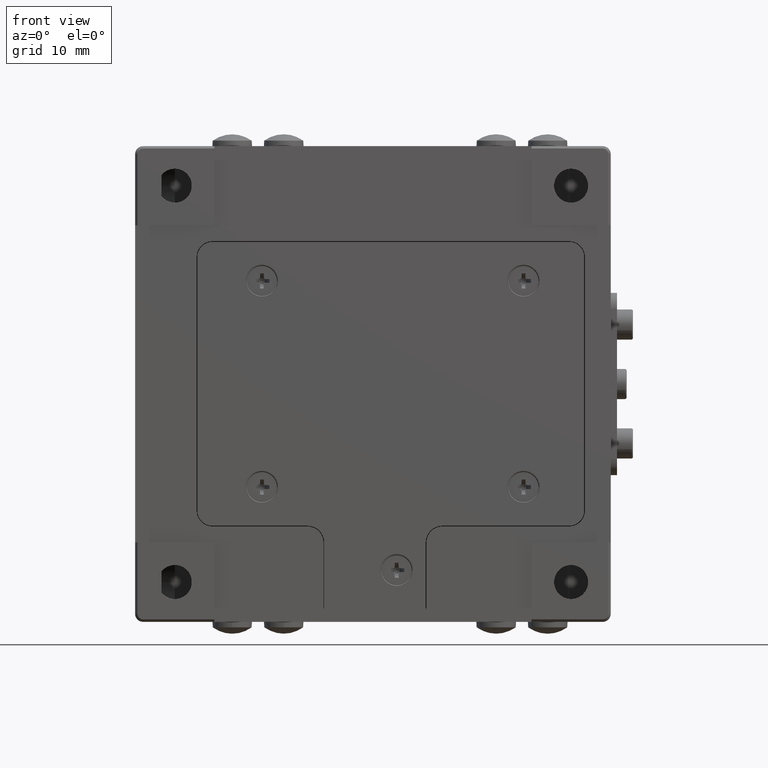
[diagram: clean part render]
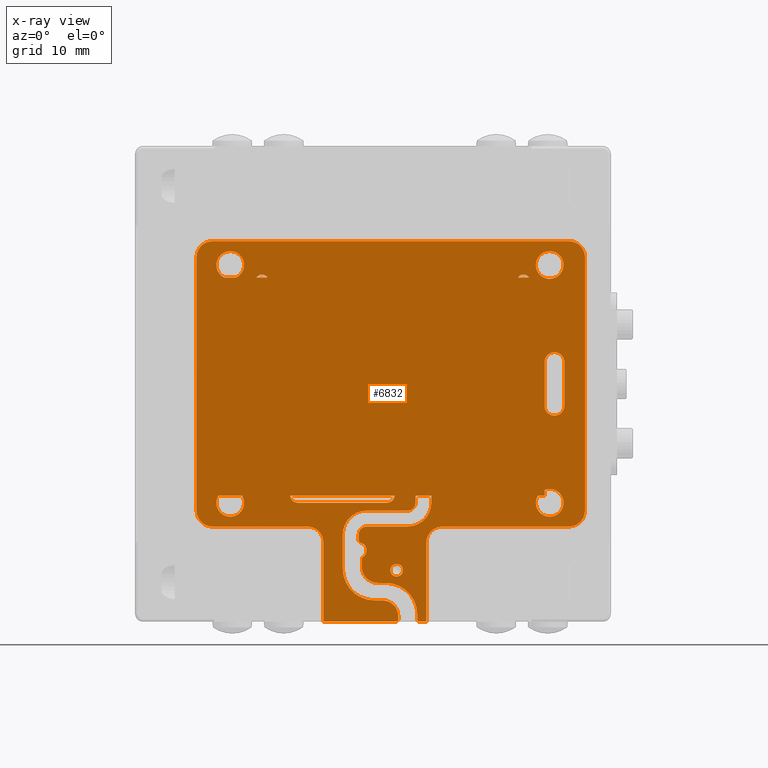
[diagram: x-ray — body ghosted, one internal face saturated and labeled with its STEP entity id]
A machine part, front view, then the same camera in x-ray: the body is ghosted and one INTERNAL B-rep face — a face not visible from any outside direction — is saturated and labeled: STEP entity #6832.
In plain terms, the highlighted planar face has unit normal (0, -1, 0).
Its self-contained STEP definition (entity closure, byte-faithful):
#32 = DIRECTION ( 'NONE',  ( -1.000000000000000000, 0.000000000000000000, 0.000000000000000000 ) ) ;
#57 = DIRECTION ( 'NONE',  ( 0.000000000000000000, -1.000000000000000000, 0.000000000000000000 ) ) ;
#196 = CARTESIAN_POINT ( 'NONE',  ( 28.19999999999999929, 3.250000000000000000, -48.98835187819890535 ) ) ;
#213 = EDGE_CURVE ( 'NONE', #8039, #18792, #24429, .T. ) ;
#263 = VERTEX_POINT ( 'NONE', #16413 ) ;
#288 = DIRECTION ( 'NONE',  ( 0.000000000000000000, 0.000000000000000000, 1.000000000000000000 ) ) ;
#299 = ORIENTED_EDGE ( 'NONE', *, *, #4678, .T. ) ;
#313 = EDGE_CURVE ( 'NONE', #5571, #22231, #4271, .T. ) ;
#344 = CARTESIAN_POINT ( 'NONE',  ( 52.29999999999999716, 3.250000000000000000, -45.00000000000000000 ) ) ;
#575 = VERTEX_POINT ( 'NONE', #12708 ) ;
#654 = CARTESIAN_POINT ( 'NONE',  ( 21.75000000000000000, 3.250000000000000000, -50.00000000000000000 ) ) ;
#659 = EDGE_CURVE ( 'NONE', #19241, #15022, #15011, .T. ) ;
#755 = VECTOR ( 'NONE', #19352, 1000.000000000000000 ) ;
#841 = VERTEX_POINT ( 'NONE', #19636 ) ;
#868 = PLANE ( 'NONE',  #14380 ) ;
#964 = EDGE_CURVE ( 'NONE', #15891, #14194, #2465, .T. ) ;
#1018 = VECTOR ( 'NONE', #18005, 1000.000000000000000 ) ;
#1056 = EDGE_LOOP ( 'NONE', ( #24201, #19419, #24862, #19119, #9525 ) ) ;
#1067 = EDGE_LOOP ( 'NONE', ( #24447, #1145, #4248, #10429 ) ) ;
#1114 = CARTESIAN_POINT ( 'NONE',  ( 34.37202194154569668, 3.250000000000000000, -44.98835187819889825 ) ) ;
#1145 = ORIENTED_EDGE ( 'NONE', *, *, #659, .F. ) ;
#1149 = CIRCLE ( 'NONE', #5989, 2.000000000000001776 ) ;
#1203 = DIRECTION ( 'NONE',  ( 0.000000000000000000, 1.000000000000000000, 0.000000000000000000 ) ) ;
#1223 = DIRECTION ( 'NONE',  ( 0.000000000000000000, -1.000000000000000000, 0.000000000000000000 ) ) ;
#1306 = ORIENTED_EDGE ( 'NONE', *, *, #24296, .T. ) ;
#1334 = ORIENTED_EDGE ( 'NONE', *, *, #4312, .F. ) ;
#1357 = FACE_BOUND ( 'NONE', #1056, .T. ) ;
#1389 = DIRECTION ( 'NONE',  ( 1.204669080539449837E-16, 0.000000000000000000, -1.000000000000000000 ) ) ;
#1391 = VECTOR ( 'NONE', #1389, 1000.000000000000000 ) ;
#1392 = EDGE_CURVE ( 'NONE', #11268, #21050, #2305, .T. ) ;
#1403 = AXIS2_PLACEMENT_3D ( 'NONE', #22371, #13276, #6966 ) ;
#1408 = ORIENTED_EDGE ( 'NONE', *, *, #16699, .T. ) ;
#1422 = DIRECTION ( 'NONE',  ( -1.000000000000000000, 0.000000000000000000, 0.000000000000000000 ) ) ;
#1426 = CARTESIAN_POINT ( 'NONE',  ( 20.54999999999999716, 3.250000000000000000, -45.00000000000000000 ) ) ;
#1432 = EDGE_CURVE ( 'NONE', #13664, #12090, #17343, .T. ) ;
#1444 = CARTESIAN_POINT ( 'NONE',  ( 28.60000000000000142, 3.250000000000000000, -51.00000000000000000 ) ) ;
#1449 = DIRECTION ( 'NONE',  ( 0.000000000000000000, 0.000000000000000000, -1.000000000000000000 ) ) ;
#1548 = AXIS2_PLACEMENT_3D ( 'NONE', #10483, #6567, #20055 ) ;
#1550 = VECTOR ( 'NONE', #12549, 1000.000000000000000 ) ;
#1643 = VERTEX_POINT ( 'NONE', #19065 ) ;
#1656 = DIRECTION ( 'NONE',  ( 0.000000000000000000, 0.000000000000000000, -1.000000000000000000 ) ) ;
#1686 = EDGE_CURVE ( 'NONE', #8893, #5756, #9088, .T. ) ;
#1694 = CARTESIAN_POINT ( 'NONE',  ( 37.37202194154570378, 3.250000000000000000, -44.98835187819889825 ) ) ;
#1753 = DIRECTION ( 'NONE',  ( 0.000000000000000000, -1.000000000000000000, 0.000000000000000000 ) ) ;
#1776 = DIRECTION ( 'NONE',  ( 0.000000000000000000, 0.000000000000000000, -1.000000000000000000 ) ) ;
#1781 = VECTOR ( 'NONE', #3694, 1000.000000000000000 ) ;
#1902 = CARTESIAN_POINT ( 'NONE',  ( 33.00000000000000000, 3.250000000000000000, -53.50000000000000000 ) ) ;
#1947 = DIRECTION ( 'NONE',  ( 0.000000000000000000, -1.000000000000000000, 0.000000000000000000 ) ) ;
#2074 = DIRECTION ( 'NONE',  ( 0.000000000000000000, 0.000000000000000000, -1.000000000000000000 ) ) ;
#2085 = EDGE_LOOP ( 'NONE', ( #17627, #7606, #20039 ) ) ;
#2193 = CARTESIAN_POINT ( 'NONE',  ( 51.68112963079270372, 3.250000000000000000, -33.02722738447675255 ) ) ;
#2233 = CARTESIAN_POINT ( 'NONE',  ( 51.68112963079270372, 3.250000000000000000, -26.97277261420695282 ) ) ;
#2275 = ORIENTED_EDGE ( 'NONE', *, *, #10838, .T. ) ;
#2300 = DIRECTION ( 'NONE',  ( 0.000000000000000000, 0.000000000000000000, -1.000000000000000000 ) ) ;
#2305 = LINE ( 'NONE', #13910, #2324 ) ;
#2312 = CARTESIAN_POINT ( 'NONE',  ( 12.00000000000000000, 3.250000000000000000, -45.00000000000000000 ) ) ;
#2324 = VECTOR ( 'NONE', #288, 1000.000000000000000 ) ;
#2332 = CARTESIAN_POINT ( 'NONE',  ( 23.75000000000000000, 3.250000000000000000, -60.00000000000000000 ) ) ;
#2349 = DIRECTION ( 'NONE',  ( 0.000000000000000000, -1.000000000000000000, 0.000000000000000000 ) ) ;
#2418 = CARTESIAN_POINT ( 'NONE',  ( 33.00000000000000000, 3.250000000000000000, -52.69999999999999574 ) ) ;
#2465 = LINE ( 'NONE', #8149, #19125 ) ;
#2514 = EDGE_CURVE ( 'NONE', #575, #6120, #22661, .T. ) ;
#2521 = LINE ( 'NONE', #19942, #5820 ) ;
#2563 = CIRCLE ( 'NONE', #5410, 1.750000000000001554 ) ;
#2573 = AXIS2_PLACEMENT_3D ( 'NONE', #13273, #9500, #13015 ) ;
#2625 = VERTEX_POINT ( 'NONE', #1694 ) ;
#2680 = AXIS2_PLACEMENT_3D ( 'NONE', #13427, #21135, #11536 ) ;
#2781 = ORIENTED_EDGE ( 'NONE', *, *, #313, .T. ) ;
#2882 = VERTEX_POINT ( 'NONE', #10928 ) ;
#2923 = VECTOR ( 'NONE', #22362, 1000.000000000000000 ) ;
#2993 = ORIENTED_EDGE ( 'NONE', *, *, #18402, .F. ) ;
#2996 = FACE_BOUND ( 'NONE', #1067, .T. ) ;
#3003 = CIRCLE ( 'NONE', #16316, 2.000000000000001776 ) ;
#3046 = DIRECTION ( 'NONE',  ( 0.000000000000000000, -1.000000000000000000, 0.000000000000000000 ) ) ;
#3061 = VERTEX_POINT ( 'NONE', #11299 ) ;
#3120 = FACE_BOUND ( 'NONE', #7747, .T. ) ;
#3123 = LINE ( 'NONE', #23637, #18818 ) ;
#3128 = CIRCLE ( 'NONE', #19670, 3.000000000000002665 ) ;
#3145 = ORIENTED_EDGE ( 'NONE', *, *, #8631, .F. ) ;
#3213 = EDGE_CURVE ( 'NONE', #8301, #9185, #19686, .T. ) ;
#3247 = DIRECTION ( 'NONE',  ( 0.000000000000000000, -1.000000000000000000, 0.000000000000000000 ) ) ;
#3262 = LINE ( 'NONE', #24362, #23590 ) ;
#3265 = VERTEX_POINT ( 'NONE', #22226 ) ;
#3350 = CARTESIAN_POINT ( 'NONE',  ( 30.20000000000000284, 3.250000000000000000, -57.30586225072890016 ) ) ;
#3352 = AXIS2_PLACEMENT_3D ( 'NONE', #21909, #12440, #20137 ) ;
#3387 = DIRECTION ( 'NONE',  ( 0.000000000000000000, 0.000000000000000000, -1.000000000000000000 ) ) ;
#3388 = DIRECTION ( 'NONE',  ( 0.000000000000000000, 0.000000000000000000, -1.000000000000000000 ) ) ;
#3537 = ORIENTED_EDGE ( 'NONE', *, *, #17689, .F. ) ;
#3572 = DIRECTION ( 'NONE',  ( 0.000000000000000000, -1.000000000000000000, 0.000000000000000000 ) ) ;
#3589 = VERTEX_POINT ( 'NONE', #23597 ) ;
#3612 = ORIENTED_EDGE ( 'NONE', *, *, #19430, .T. ) ;
#3616 = AXIS2_PLACEMENT_3D ( 'NONE', #21264, #19368, #2074 ) ;
#3664 = DIRECTION ( 'NONE',  ( 0.000000000000000000, -1.000000000000000000, 0.000000000000000000 ) ) ;
#3694 = DIRECTION ( 'NONE',  ( 0.000000000000000000, 0.000000000000000000, -1.000000000000000000 ) ) ;
#3744 = CARTESIAN_POINT ( 'NONE',  ( 7.228523424522479424, 3.250000000000000000, -44.09063743896764720 ) ) ;
#3748 = CARTESIAN_POINT ( 'NONE',  ( 32.89999999999999858, 3.250000000000000000, -60.00000000000000000 ) ) ;
#3790 = VERTEX_POINT ( 'NONE', #18523 ) ;
#3814 = VECTOR ( 'NONE', #7871, 1000.000000000000000 ) ;
#3835 = EDGE_CURVE ( 'NONE', #2882, #24162, #22724, .T. ) ;
#3842 = VERTEX_POINT ( 'NONE', #14594 ) ;
#3903 = EDGE_CURVE ( 'NONE', #263, #17045, #23931, .T. ) ;
#3924 = LINE ( 'NONE', #9638, #21229 ) ;
#3952 = ORIENTED_EDGE ( 'NONE', *, *, #13135, .T. ) ;
#4138 = EDGE_CURVE ( 'NONE', #19599, #16895, #13055, .T. ) ;
#4216 = CIRCLE ( 'NONE', #7037, 2.000000000000000000 ) ;
#4248 = ORIENTED_EDGE ( 'NONE', *, *, #22667, .F. ) ;
#4271 = CIRCLE ( 'NONE', #18782, 2.000000000000000000 ) ;
#4274 = CARTESIAN_POINT ( 'NONE',  ( 9.750000000000000000, 3.250000000000000000, -12.00000000000000000 ) ) ;
#4288 = VECTOR ( 'NONE', #17670, 1000.000000000000000 ) ;
#4309 = DIRECTION ( 'NONE',  ( 0.000000000000000000, 0.000000000000000000, -1.000000000000000000 ) ) ;
#4312 = EDGE_CURVE ( 'NONE', #24608, #3842, #11271, .T. ) ;
#4390 = AXIS2_PLACEMENT_3D ( 'NONE', #11287, #3572, #21004 ) ;
#4439 = DIRECTION ( 'NONE',  ( 7.763230419829150531E-15, 0.000000000000000000, 1.000000000000000000 ) ) ;
#4548 = ORIENTED_EDGE ( 'NONE', *, *, #6932, .F. ) ;
#4609 = ORIENTED_EDGE ( 'NONE', *, *, #6723, .T. ) ;
#4616 = ORIENTED_EDGE ( 'NONE', *, *, #964, .T. ) ;
#4659 = CARTESIAN_POINT ( 'NONE',  ( 23.75000000000000000, 3.250000000000000000, -60.00000000000000000 ) ) ;
#4661 = DIRECTION ( 'NONE',  ( 1.000000000000000000, 0.000000000000000000, 0.000000000000000000 ) ) ;
#4678 = EDGE_CURVE ( 'NONE', #13933, #9383, #7260, .T. ) ;
#4760 = CIRCLE ( 'NONE', #1548, 2.000000000000001776 ) ;
#4843 = VERTEX_POINT ( 'NONE', #5705 ) ;
#4975 = DIRECTION ( 'NONE',  ( 0.000000000000000000, -1.000000000000000000, 0.000000000000000000 ) ) ;
#5039 = VERTEX_POINT ( 'NONE', #2418 ) ;
#5144 = DIRECTION ( 'NONE',  ( 0.000000000000000000, 1.000000000000000000, 0.000000000000000000 ) ) ;
#5224 = LINE ( 'NONE', #12928, #1781 ) ;
#5235 = CARTESIAN_POINT ( 'NONE',  ( 29.19999999999999929, 3.250000000000000000, -48.98835187819890535 ) ) ;
#5306 = CARTESIAN_POINT ( 'NONE',  ( 11.24832936420389906, 3.250000000000000000, -16.58034529621910025 ) ) ;
#5358 = DIRECTION ( 'NONE',  ( 0.000000000000000000, 0.000000000000000000, -1.000000000000000000 ) ) ;
#5360 = CARTESIAN_POINT ( 'NONE',  ( 56.75000000000000000, 3.250000000000000000, -14.00000000000000000 ) ) ;
#5373 = AXIS2_PLACEMENT_3D ( 'NONE', #11774, #23520, #2300 ) ;
#5410 = AXIS2_PLACEMENT_3D ( 'NONE', #22336, #12863, #12737 ) ;
#5434 = EDGE_CURVE ( 'NONE', #3589, #22586, #13045, .T. ) ;
#5518 = CIRCLE ( 'NONE', #2680, 1.250000000000001110 ) ;
#5555 = ORIENTED_EDGE ( 'NONE', *, *, #24975, .F. ) ;
#5571 = VERTEX_POINT ( 'NONE', #5360 ) ;
#5690 = CARTESIAN_POINT ( 'NONE',  ( 28.89999999999999858, 3.250000000000000000, -52.09544511501049868 ) ) ;
#5705 = CARTESIAN_POINT ( 'NONE',  ( 13.49517882963634108, 3.250000000000000000, -44.09063743896764720 ) ) ;
#5706 = VERTEX_POINT ( 'NONE', #17467 ) ;
#5756 = VERTEX_POINT ( 'NONE', #6109 ) ;
#5820 = VECTOR ( 'NONE', #4661, 1000.000000000000000 ) ;
#5855 = ORIENTED_EDGE ( 'NONE', *, *, #13919, .F. ) ;
#5909 = EDGE_CURVE ( 'NONE', #3790, #9616, #10267, .T. ) ;
#5918 = CARTESIAN_POINT ( 'NONE',  ( 56.75000000000000000, 3.250000000000000000, -46.00000000000000000 ) ) ;
#5930 = ORIENTED_EDGE ( 'NONE', *, *, #2514, .F. ) ;
#5935 = DIRECTION ( 'NONE',  ( -1.000000000000000000, 0.000000000000000000, 0.000000000000000000 ) ) ;
#5989 = AXIS2_PLACEMENT_3D ( 'NONE', #11618, #17417, #8200 ) ;
#6109 = CARTESIAN_POINT ( 'NONE',  ( 9.750000000000000000, 3.250000000000000000, -48.00000000000000000 ) ) ;
#6120 = VERTEX_POINT ( 'NONE', #9645 ) ;
#6178 = CARTESIAN_POINT ( 'NONE',  ( 51.68112963079270372, 3.250000000000000000, -16.58034529621910025 ) ) ;
#6199 = EDGE_CURVE ( 'NONE', #24398, #21244, #13892, .T. ) ;
#6226 = CARTESIAN_POINT ( 'NONE',  ( 7.228523424522479424, 3.250000000000000000, -16.58034529621910025 ) ) ;
#6230 = VERTEX_POINT ( 'NONE', #19957 ) ;
#6252 = VERTEX_POINT ( 'NONE', #21984 ) ;
#6272 = CARTESIAN_POINT ( 'NONE',  ( 38.75000000000000000, 3.250000000000000000, -48.00000000000000000 ) ) ;
#6277 = VECTOR ( 'NONE', #18455, 1000.000000000000000 ) ;
#6307 = CARTESIAN_POINT ( 'NONE',  ( 35.37202194154569668, 3.250000000000000000, -44.98835187819889825 ) ) ;
#6345 = VECTOR ( 'NONE', #9165, 1000.000000000000000 ) ;
#6463 = CARTESIAN_POINT ( 'NONE',  ( 31.60000000000000142, 3.250000000000000000, -59.10618472869440154 ) ) ;
#6543 = ORIENTED_EDGE ( 'NONE', *, *, #3213, .F. ) ;
#6567 = DIRECTION ( 'NONE',  ( 0.000000000000000000, 1.000000000000000000, 0.000000000000000000 ) ) ;
#6575 = ORIENTED_EDGE ( 'NONE', *, *, #24594, .F. ) ;
#6599 = AXIS2_PLACEMENT_3D ( 'NONE', #1902, #3664, #1776 ) ;
#6617 = CARTESIAN_POINT ( 'NONE',  ( 52.29999999999999716, 3.250000000000000000, -16.75000000000000000 ) ) ;
#6627 = ORIENTED_EDGE ( 'NONE', *, *, #15770, .F. ) ;
#6699 = DIRECTION ( 'NONE',  ( 0.000000000000000000, -1.000000000000000000, 0.000000000000000000 ) ) ;
#6702 = VECTOR ( 'NONE', #19266, 1000.000000000000000 ) ;
#6723 = EDGE_CURVE ( 'NONE', #23458, #15891, #18395, .T. ) ;
#6754 = EDGE_CURVE ( 'NONE', #2882, #11268, #8452, .T. ) ;
#6832 = ADVANCED_FACE ( 'NONE', ( #24228, #8568, #7183, #6925, #3120, #16275, #1357, #2996, #18158, #14730 ), #868, .T. ) ;
#6835 = EDGE_CURVE ( 'NONE', #2625, #3265, #21230, .T. ) ;
#6881 = CARTESIAN_POINT ( 'NONE',  ( 7.228523424522479424, 3.250000000000000000, -44.09063743896764720 ) ) ;
#6925 = FACE_BOUND ( 'NONE', #18241, .T. ) ;
#6932 = EDGE_CURVE ( 'NONE', #13664, #12090, #11548, .T. ) ;
#6966 = DIRECTION ( 'NONE',  ( 0.000000000000000000, 0.000000000000000000, -1.000000000000000000 ) ) ;
#7037 = AXIS2_PLACEMENT_3D ( 'NONE', #20439, #14746, #18548 ) ;
#7109 = CARTESIAN_POINT ( 'NONE',  ( 20.54999999999999716, 3.250000000000000000, -44.00000000000000000 ) ) ;
#7111 = VERTEX_POINT ( 'NONE', #4274 ) ;
#7113 = CARTESIAN_POINT ( 'NONE',  ( 28.19999999999999929, 3.250000000000000000, -49.73508893593270130 ) ) ;
#7117 = VERTEX_POINT ( 'NONE', #15782 ) ;
#7144 = EDGE_CURVE ( 'NONE', #7392, #20219, #19178, .T. ) ;
#7183 = FACE_BOUND ( 'NONE', #11217, .T. ) ;
#7260 = CIRCLE ( 'NONE', #24603, 0.3000000000000016542 ) ;
#7302 = CARTESIAN_POINT ( 'NONE',  ( 52.29999999999999716, 3.250000000000000000, -45.00000000000000000 ) ) ;
#7332 = ORIENTED_EDGE ( 'NONE', *, *, #18618, .T. ) ;
#7392 = VERTEX_POINT ( 'NONE', #20677 ) ;
#7480 = LINE ( 'NONE', #9380, #8348 ) ;
#7515 = EDGE_LOOP ( 'NONE', ( #15610, #1334 ) ) ;
#7529 = EDGE_LOOP ( 'NONE', ( #3612, #24444, #3145, #6575, #9586 ) ) ;
#7537 = DIRECTION ( 'NONE',  ( 0.000000000000000000, 0.000000000000000000, -1.000000000000000000 ) ) ;
#7604 = CARTESIAN_POINT ( 'NONE',  ( 36.75000000000000000, 3.250000000000000000, -50.00000000000000000 ) ) ;
#7606 = ORIENTED_EDGE ( 'NONE', *, *, #18032, .F. ) ;
#7649 = VECTOR ( 'NONE', #4439, 1000.000000000000000 ) ;
#7726 = EDGE_CURVE ( 'NONE', #24608, #3842, #15992, .T. ) ;
#7747 = EDGE_LOOP ( 'NONE', ( #24735, #13966 ) ) ;
#7871 = DIRECTION ( 'NONE',  ( -1.000000000000000000, 0.000000000000000000, 0.000000000000000000 ) ) ;
#7953 = ORIENTED_EDGE ( 'NONE', *, *, #23108, .F. ) ;
#7954 = DIRECTION ( 'NONE',  ( 0.000000000000000000, -1.000000000000000000, 0.000000000000000000 ) ) ;
#8039 = VERTEX_POINT ( 'NONE', #2193 ) ;
#8053 = DIRECTION ( 'NONE',  ( 0.000000000000000000, -1.000000000000000000, 0.000000000000000000 ) ) ;
#8058 = DIRECTION ( 'NONE',  ( -1.000000000000000000, 0.000000000000000000, 6.938893903907220489E-15 ) ) ;
#8078 = CARTESIAN_POINT ( 'NONE',  ( 52.29999999999999716, 3.250000000000000000, -46.75000000000000000 ) ) ;
#8115 = DIRECTION ( 'NONE',  ( 0.000000000000000000, 0.000000000000000000, -1.000000000000000000 ) ) ;
#8149 = CARTESIAN_POINT ( 'NONE',  ( 36.75000000000000000, 3.250000000000000000, -48.00000000000000000 ) ) ;
#8178 = CARTESIAN_POINT ( 'NONE',  ( 10.50482117036366070, 3.250000000000000000, -44.09063743896764720 ) ) ;
#8180 = EDGE_CURVE ( 'NONE', #24162, #18596, #10405, .T. ) ;
#8195 = DIRECTION ( 'NONE',  ( 0.000000000000000000, 0.000000000000000000, -1.000000000000000000 ) ) ;
#8200 = DIRECTION ( 'NONE',  ( 0.000000000000000000, 0.000000000000000000, -1.000000000000000000 ) ) ;
#8246 = EDGE_CURVE ( 'NONE', #841, #1643, #22388, .T. ) ;
#8301 = VERTEX_POINT ( 'NONE', #10781 ) ;
#8348 = VECTOR ( 'NONE', #9757, 1000.000000000000000 ) ;
#8361 = DIRECTION ( 'NONE',  ( 0.000000000000000000, 0.000000000000000000, -1.000000000000000000 ) ) ;
#8386 = CARTESIAN_POINT ( 'NONE',  ( 52.29999999999999716, 3.250000000000000000, -45.00000000000000000 ) ) ;
#8389 = CIRCLE ( 'NONE', #14410, 1.750000000000001554 ) ;
#8413 = DIRECTION ( 'NONE',  ( 0.000000000000000000, 0.000000000000000000, -1.000000000000000000 ) ) ;
#8452 = LINE ( 'NONE', #19689, #4288 ) ;
#8513 = EDGE_LOOP ( 'NONE', ( #24440, #23208, #24581, #1408, #21841, #7332, #299, #21526, #9983, #3537, #11355, #8558, #1306, #16138, #8575, #13804, #21011, #24566, #15441, #7953, #3952, #5555, #16969, #22101, #11036, #5930, #14303, #5855, #6543, #23696, #13100, #9729, #2275, #4609, #4616, #14972, #22962, #2781, #19802, #23447 ) ) ;
#8558 = ORIENTED_EDGE ( 'NONE', *, *, #6199, .F. ) ;
#8568 = FACE_BOUND ( 'NONE', #7529, .T. ) ;
#8575 = ORIENTED_EDGE ( 'NONE', *, *, #19303, .T. ) ;
#8607 = CARTESIAN_POINT ( 'NONE',  ( 12.00000000000000000, 3.250000000000000000, -45.00000000000000000 ) ) ;
#8631 = EDGE_CURVE ( 'NONE', #11258, #263, #24230, .T. ) ;
#8634 = CARTESIAN_POINT ( 'NONE',  ( 37.37202194154570378, 3.250000000000000000, -40.50000000000000000 ) ) ;
#8673 = EDGE_CURVE ( 'NONE', #24066, #5571, #3123, .T. ) ;
#8677 = ORIENTED_EDGE ( 'NONE', *, *, #8180, .F. ) ;
#8702 = DIRECTION ( 'NONE',  ( 0.000000000000000000, -1.000000000000000000, 0.000000000000000000 ) ) ;
#8771 = LINE ( 'NONE', #6881, #1550 ) ;
#8889 = DIRECTION ( 'NONE',  ( 0.000000000000000000, 0.000000000000000000, -1.000000000000000000 ) ) ;
#8893 = VERTEX_POINT ( 'NONE', #18129 ) ;
#8915 = CARTESIAN_POINT ( 'NONE',  ( 52.29999999999999716, 3.250000000000000000, -15.00000000000000000 ) ) ;
#9088 = CIRCLE ( 'NONE', #1403, 2.000000000000001776 ) ;
#9151 = DIRECTION ( 'NONE',  ( 1.000000000000000000, 0.000000000000000000, -6.938893903907390094E-15 ) ) ;
#9155 = CARTESIAN_POINT ( 'NONE',  ( 31.75000000000000000, 3.250000000000000000, -45.00000000000000000 ) ) ;
#9165 = DIRECTION ( 'NONE',  ( 0.000000000000000000, 0.000000000000000000, 1.000000000000000000 ) ) ;
#9185 = VERTEX_POINT ( 'NONE', #21517 ) ;
#9199 = VERTEX_POINT ( 'NONE', #9799 ) ;
#9281 = VECTOR ( 'NONE', #9583, 1000.000000000000000 ) ;
#9380 = CARTESIAN_POINT ( 'NONE',  ( 28.19999999999999929, 3.250000000000000000, -51.00000000000000000 ) ) ;
#9383 = VERTEX_POINT ( 'NONE', #23802 ) ;
#9403 = AXIS2_PLACEMENT_3D ( 'NONE', #654, #12017, #8115 ) ;
#9414 = EDGE_CURVE ( 'NONE', #2625, #9199, #22016, .T. ) ;
#9431 = AXIS2_PLACEMENT_3D ( 'NONE', #17374, #13580, #7537 ) ;
#9500 = DIRECTION ( 'NONE',  ( 0.000000000000000000, -1.000000000000000000, 0.000000000000000000 ) ) ;
#9525 = ORIENTED_EDGE ( 'NONE', *, *, #22100, .T. ) ;
#9554 = AXIS2_PLACEMENT_3D ( 'NONE', #2312, #1947, #24946 ) ;
#9582 = DIRECTION ( 'NONE',  ( 0.000000000000000000, 0.000000000000000000, 1.000000000000000000 ) ) ;
#9583 = DIRECTION ( 'NONE',  ( 1.000000000000000000, 0.000000000000000000, 0.000000000000000000 ) ) ;
#9586 = ORIENTED_EDGE ( 'NONE', *, *, #213, .F. ) ;
#9613 = CIRCLE ( 'NONE', #9554, 1.750000000000001554 ) ;
#9616 = VERTEX_POINT ( 'NONE', #1426 ) ;
#9627 = DIRECTION ( 'NONE',  ( 0.000000000000000000, 0.000000000000000000, -1.000000000000000000 ) ) ;
#9638 = CARTESIAN_POINT ( 'NONE',  ( 7.228523424522479424, 3.250000000000000000, -16.58034529621910025 ) ) ;
#9645 = CARTESIAN_POINT ( 'NONE',  ( 28.60000000000000142, 3.250000000000000000, -52.09544511501049868 ) ) ;
#9729 = ORIENTED_EDGE ( 'NONE', *, *, #14961, .T. ) ;
#9757 = DIRECTION ( 'NONE',  ( 0.000000000000000000, 0.000000000000000000, 1.000000000000000000 ) ) ;
#9763 = EDGE_CURVE ( 'NONE', #7392, #8301, #13654, .T. ) ;
#9783 = DIRECTION ( 'NONE',  ( 0.000000000000000000, 0.000000000000000000, -1.000000000000000000 ) ) ;
#9799 = CARTESIAN_POINT ( 'NONE',  ( 37.37202194154570378, 3.250000000000000000, -44.09063743896764720 ) ) ;
#9885 = VECTOR ( 'NONE', #9627, 1000.000000000000000 ) ;
#9912 = DIRECTION ( 'NONE',  ( 1.000000000000000000, 0.000000000000000000, 0.000000000000000000 ) ) ;
#9957 = VECTOR ( 'NONE', #9912, 1000.000000000000000 ) ;
#9983 = ORIENTED_EDGE ( 'NONE', *, *, #10232, .F. ) ;
#10015 = DIRECTION ( 'NONE',  ( 0.000000000000000000, 0.000000000000000000, -1.000000000000000000 ) ) ;
#10232 = EDGE_CURVE ( 'NONE', #21299, #6230, #1149, .T. ) ;
#10267 = CIRCLE ( 'NONE', #20317, 1.000000000000000888 ) ;
#10290 = DIRECTION ( 'NONE',  ( 0.000000000000000000, 0.000000000000000000, 1.000000000000000000 ) ) ;
#10326 = AXIS2_PLACEMENT_3D ( 'NONE', #19426, #7954, #21455 ) ;
#10375 = VERTEX_POINT ( 'NONE', #23866 ) ;
#10381 = EDGE_CURVE ( 'NONE', #11933, #575, #4760, .T. ) ;
#10405 = CIRCLE ( 'NONE', #15241, 1.750000000000001554 ) ;
#10429 = ORIENTED_EDGE ( 'NONE', *, *, #5909, .F. ) ;
#10483 = CARTESIAN_POINT ( 'NONE',  ( 30.59999999999999787, 3.250000000000000000, -53.10618472869440154 ) ) ;
#10781 = CARTESIAN_POINT ( 'NONE',  ( 35.60000000000000142, 3.250000000000000000, -59.10618472869440154 ) ) ;
#10805 = DIRECTION ( 'NONE',  ( 0.000000000000000000, 0.000000000000000000, -1.000000000000000000 ) ) ;
#10812 = ORIENTED_EDGE ( 'NONE', *, *, #10839, .F. ) ;
#10829 = CARTESIAN_POINT ( 'NONE',  ( 31.75000000000000000, 3.250000000000000000, -44.00000000000000000 ) ) ;
#10838 = EDGE_CURVE ( 'NONE', #10375, #23458, #22773, .T. ) ;
#10839 = EDGE_CURVE ( 'NONE', #18799, #5039, #15282, .T. ) ;
#10845 = DIRECTION ( 'NONE',  ( 0.000000000000000000, 0.000000000000000000, -1.000000000000000000 ) ) ;
#10928 = CARTESIAN_POINT ( 'NONE',  ( 50.80482117036370227, 3.250000000000000000, -44.09063743896764720 ) ) ;
#11036 = ORIENTED_EDGE ( 'NONE', *, *, #18388, .T. ) ;
#11217 = EDGE_LOOP ( 'NONE', ( #18817, #6627, #8677, #22393, #17741 ) ) ;
#11228 = CARTESIAN_POINT ( 'NONE',  ( 54.75000000000000000, 3.250000000000000000, -14.00000000000000000 ) ) ;
#11258 = VERTEX_POINT ( 'NONE', #19742 ) ;
#11268 = VERTEX_POINT ( 'NONE', #15713 ) ;
#11271 = CIRCLE ( 'NONE', #22157, 0.7999999999999882760 ) ;
#11282 = EDGE_CURVE ( 'NONE', #21244, #21262, #24192, .T. ) ;
#11287 = CARTESIAN_POINT ( 'NONE',  ( 33.00000000000000000, 3.250000000000000000, -53.50000000000000000 ) ) ;
#11298 = CARTESIAN_POINT ( 'NONE',  ( 52.29999999999999716, 3.250000000000000000, -15.00000000000000000 ) ) ;
#11299 = CARTESIAN_POINT ( 'NONE',  ( 7.750000000000000000, 3.250000000000000000, -14.00000000000000000 ) ) ;
#11355 = ORIENTED_EDGE ( 'NONE', *, *, #11282, .F. ) ;
#11424 = VERTEX_POINT ( 'NONE', #6617 ) ;
#11529 = ORIENTED_EDGE ( 'NONE', *, *, #1432, .T. ) ;
#11536 = DIRECTION ( 'NONE',  ( 0.000000000000000000, 0.000000000000000000, -1.000000000000000000 ) ) ;
#11548 = CIRCLE ( 'NONE', #14764, 1.750000000000001554 ) ;
#11591 = CARTESIAN_POINT ( 'NONE',  ( 52.90000000000000568, 3.250000000000000000, -33.99999999934235007 ) ) ;
#11618 = CARTESIAN_POINT ( 'NONE',  ( 31.19999999999999929, 3.250000000000000000, -59.30586225072890016 ) ) ;
#11620 = EDGE_LOOP ( 'NONE', ( #10812, #2993 ) ) ;
#11654 = CARTESIAN_POINT ( 'NONE',  ( 23.75000000000000000, 3.250000000000000000, -60.00000000000000000 ) ) ;
#11735 = DIRECTION ( 'NONE',  ( 0.000000000000000000, 1.000000000000000000, 0.000000000000000000 ) ) ;
#11774 = CARTESIAN_POINT ( 'NONE',  ( 34.37202194154569668, 3.250000000000000000, -44.98835187819889825 ) ) ;
#11823 = VECTOR ( 'NONE', #19726, 1000.000000000000000 ) ;
#11879 = VERTEX_POINT ( 'NONE', #21858 ) ;
#11933 = VERTEX_POINT ( 'NONE', #24641 ) ;
#11937 = CARTESIAN_POINT ( 'NONE',  ( 31.75000000000000000, 3.250000000000000000, -45.00000000000000000 ) ) ;
#11939 = CARTESIAN_POINT ( 'NONE',  ( 28.19999999999999929, 3.250000000000000000, -51.00000000000000000 ) ) ;
#11991 = VERTEX_POINT ( 'NONE', #18566 ) ;
#12017 = DIRECTION ( 'NONE',  ( 0.000000000000000000, 1.000000000000000000, 0.000000000000000000 ) ) ;
#12076 = EDGE_CURVE ( 'NONE', #3061, #8893, #22358, .T. ) ;
#12090 = VERTEX_POINT ( 'NONE', #5306 ) ;
#12095 = CIRCLE ( 'NONE', #23781, 1.750000000000001554 ) ;
#12128 = VERTEX_POINT ( 'NONE', #6178 ) ;
#12146 = CARTESIAN_POINT ( 'NONE',  ( 51.68112963079270372, 3.250000000000000000, -16.58034529621910025 ) ) ;
#12294 = LINE ( 'NONE', #19992, #23890 ) ;
#12300 = VERTEX_POINT ( 'NONE', #6307 ) ;
#12348 = VERTEX_POINT ( 'NONE', #16165 ) ;
#12440 = DIRECTION ( 'NONE',  ( 0.000000000000000000, -1.000000000000000000, 0.000000000000000000 ) ) ;
#12451 = LINE ( 'NONE', #18250, #1018 ) ;
#12518 = VECTOR ( 'NONE', #10290, 1000.000000000000000 ) ;
#12549 = DIRECTION ( 'NONE',  ( 1.000000000000000000, 0.000000000000000000, 0.000000000000000000 ) ) ;
#12596 = CARTESIAN_POINT ( 'NONE',  ( 0.000000000000000000, 3.250000000000000000, 0.000000000000000000 ) ) ;
#12708 = CARTESIAN_POINT ( 'NONE',  ( 28.60000000000000142, 3.250000000000000000, -53.10618472869440154 ) ) ;
#12737 = DIRECTION ( 'NONE',  ( 0.000000000000000000, 0.000000000000000000, -1.000000000000000000 ) ) ;
#12838 = EDGE_CURVE ( 'NONE', #6230, #9383, #12451, .T. ) ;
#12863 = DIRECTION ( 'NONE',  ( 0.000000000000000000, -1.000000000000000000, 0.000000000000000000 ) ) ;
#12920 = VERTEX_POINT ( 'NONE', #7113 ) ;
#12928 = CARTESIAN_POINT ( 'NONE',  ( 23.75000000000000000, 3.250000000000000000, -60.00000000000000000 ) ) ;
#12937 = CARTESIAN_POINT ( 'NONE',  ( 26.20000000000000284, 3.250000000000000000, -48.98835187819890535 ) ) ;
#12961 = DIRECTION ( 'NONE',  ( 0.000000000000000000, 0.000000000000000000, -1.000000000000000000 ) ) ;
#13015 = DIRECTION ( 'NONE',  ( 0.000000000000000000, 0.000000000000000000, -1.000000000000000000 ) ) ;
#13045 = CIRCLE ( 'NONE', #3352, 0.7999999999999882760 ) ;
#13048 = CIRCLE ( 'NONE', #23124, 0.3000000000000016542 ) ;
#13055 = CIRCLE ( 'NONE', #17895, 1.000000000000000888 ) ;
#13100 = ORIENTED_EDGE ( 'NONE', *, *, #7144, .T. ) ;
#13135 = EDGE_CURVE ( 'NONE', #24837, #17561, #24024, .T. ) ;
#13273 = CARTESIAN_POINT ( 'NONE',  ( 28.50000000000000000, 3.250000000000000000, -49.73508893593270130 ) ) ;
#13276 = DIRECTION ( 'NONE',  ( 0.000000000000000000, -1.000000000000000000, 0.000000000000000000 ) ) ;
#13352 = LINE ( 'NONE', #3744, #9281 ) ;
#13362 = CARTESIAN_POINT ( 'NONE',  ( 33.00000000000000000, 3.250000000000000000, -54.30000000000000426 ) ) ;
#13427 = CARTESIAN_POINT ( 'NONE',  ( 52.90000000000000568, 3.250000000000000000, -32.74999999934235007 ) ) ;
#13464 = CIRCLE ( 'NONE', #2573, 0.3000000000000016542 ) ;
#13512 = LINE ( 'NONE', #17307, #9885 ) ;
#13521 = AXIS2_PLACEMENT_3D ( 'NONE', #16537, #6699, #20063 ) ;
#13580 = DIRECTION ( 'NONE',  ( 0.000000000000000000, -1.000000000000000000, 0.000000000000000000 ) ) ;
#13654 = LINE ( 'NONE', #13771, #7649 ) ;
#13664 = VERTEX_POINT ( 'NONE', #22216 ) ;
#13717 = LINE ( 'NONE', #19536, #19488 ) ;
#13752 = CARTESIAN_POINT ( 'NONE',  ( 7.228523424522479424, 3.250000000000000000, -16.58034529621910025 ) ) ;
#13771 = CARTESIAN_POINT ( 'NONE',  ( 35.60000000000000142, 3.250000000000000000, -59.10618472869440154 ) ) ;
#13804 = ORIENTED_EDGE ( 'NONE', *, *, #20575, .F. ) ;
#13832 = AXIS2_PLACEMENT_3D ( 'NONE', #7302, #24221, #12961 ) ;
#13847 = CARTESIAN_POINT ( 'NONE',  ( 54.75000000000000000, 3.250000000000000000, -12.00000000000000000 ) ) ;
#13870 = AXIS2_PLACEMENT_3D ( 'NONE', #11298, #57, #9783 ) ;
#13878 = LINE ( 'NONE', #4659, #19074 ) ;
#13892 = LINE ( 'NONE', #23884, #24855 ) ;
#13910 = CARTESIAN_POINT ( 'NONE',  ( 51.68112963079270372, 3.250000000000000000, -16.58034529621910025 ) ) ;
#13919 = EDGE_CURVE ( 'NONE', #9185, #11933, #13717, .T. ) ;
#13933 = VERTEX_POINT ( 'NONE', #3748 ) ;
#13966 = ORIENTED_EDGE ( 'NONE', *, *, #5434, .F. ) ;
#14109 = CARTESIAN_POINT ( 'NONE',  ( 26.20000000000000284, 3.250000000000000000, -53.30586225072890016 ) ) ;
#14134 = CARTESIAN_POINT ( 'NONE',  ( 52.29999999999999716, 3.250000000000000000, -43.25000000000000000 ) ) ;
#14194 = VERTEX_POINT ( 'NONE', #22433 ) ;
#14303 = ORIENTED_EDGE ( 'NONE', *, *, #10381, .F. ) ;
#14380 = AXIS2_PLACEMENT_3D ( 'NONE', #12596, #3247, #22455 ) ;
#14410 = AXIS2_PLACEMENT_3D ( 'NONE', #8915, #4975, #10805 ) ;
#14546 = VERTEX_POINT ( 'NONE', #2332 ) ;
#14594 = CARTESIAN_POINT ( 'NONE',  ( 48.31890534461459907, 3.250000000000000000, -16.58034529621910025 ) ) ;
#14651 = CIRCLE ( 'NONE', #13870, 1.750000000000001554 ) ;
#14730 = FACE_BOUND ( 'NONE', #11620, .T. ) ;
#14746 = DIRECTION ( 'NONE',  ( 0.000000000000000000, -1.000000000000000000, 0.000000000000000000 ) ) ;
#14764 = AXIS2_PLACEMENT_3D ( 'NONE', #18273, #8702, #20559 ) ;
#14771 = EDGE_CURVE ( 'NONE', #5706, #9199, #8771, .T. ) ;
#14855 = CARTESIAN_POINT ( 'NONE',  ( 15.31890534461459907, 3.250000000000000000, -16.58034529621910025 ) ) ;
#14883 = DIRECTION ( 'NONE',  ( 1.000000000000000000, 0.000000000000000000, 0.000000000000000000 ) ) ;
#14954 = CARTESIAN_POINT ( 'NONE',  ( 49.00000000000000000, 3.250000000000000000, -17.00000000000000000 ) ) ;
#14961 = EDGE_CURVE ( 'NONE', #20219, #10375, #23144, .T. ) ;
#14972 = ORIENTED_EDGE ( 'NONE', *, *, #20885, .T. ) ;
#15011 = CIRCLE ( 'NONE', #21467, 1.000000000000000888 ) ;
#15022 = VERTEX_POINT ( 'NONE', #23996 ) ;
#15106 = CARTESIAN_POINT ( 'NONE',  ( 31.19999999999999929, 3.250000000000000000, -57.30586225072890016 ) ) ;
#15241 = AXIS2_PLACEMENT_3D ( 'NONE', #8386, #16094, #23798 ) ;
#15259 = LINE ( 'NONE', #16559, #2923 ) ;
#15282 = CIRCLE ( 'NONE', #4390, 0.7999999999999882760 ) ;
#15325 = DIRECTION ( 'NONE',  ( 0.000000000000000000, 0.000000000000000000, 1.000000000000000000 ) ) ;
#15441 = ORIENTED_EDGE ( 'NONE', *, *, #6835, .T. ) ;
#15574 = CARTESIAN_POINT ( 'NONE',  ( 37.37202194154570378, 3.250000000000000000, -47.98835187819889825 ) ) ;
#15610 = ORIENTED_EDGE ( 'NONE', *, *, #7726, .T. ) ;
#15713 = CARTESIAN_POINT ( 'NONE',  ( 51.68112963079270372, 3.250000000000000000, -44.09063743896764720 ) ) ;
#15746 = EDGE_CURVE ( 'NONE', #21032, #4843, #13352, .T. ) ;
#15770 = EDGE_CURVE ( 'NONE', #18596, #21050, #12095, .T. ) ;
#15782 = CARTESIAN_POINT ( 'NONE',  ( 21.75000000000000000, 3.250000000000000000, -48.00000000000000000 ) ) ;
#15850 = DIRECTION ( 'NONE',  ( 1.000000000000000000, 0.000000000000000000, 0.000000000000000000 ) ) ;
#15891 = VERTEX_POINT ( 'NONE', #6272 ) ;
#15945 = LINE ( 'NONE', #12146, #11823 ) ;
#15992 = LINE ( 'NONE', #18242, #18439 ) ;
#16029 = CARTESIAN_POINT ( 'NONE',  ( 38.75000000000000000, 3.250000000000000000, -50.00000000000000000 ) ) ;
#16094 = DIRECTION ( 'NONE',  ( 0.000000000000000000, -1.000000000000000000, 0.000000000000000000 ) ) ;
#16138 = ORIENTED_EDGE ( 'NONE', *, *, #8246, .F. ) ;
#16165 = CARTESIAN_POINT ( 'NONE',  ( 12.00000000000000000, 3.250000000000000000, -46.75000000000000000 ) ) ;
#16180 = DIRECTION ( 'NONE',  ( 0.000000000000000000, -1.000000000000000000, 0.000000000000000000 ) ) ;
#16243 = CIRCLE ( 'NONE', #18247, 1.750000000000001554 ) ;
#16269 = VERTEX_POINT ( 'NONE', #23914 ) ;
#16275 = FACE_BOUND ( 'NONE', #7515, .T. ) ;
#16313 = DIRECTION ( 'NONE',  ( 0.000000000000000000, -1.000000000000000000, 0.000000000000000000 ) ) ;
#16316 = AXIS2_PLACEMENT_3D ( 'NONE', #20694, #1753, #3388 ) ;
#16413 = CARTESIAN_POINT ( 'NONE',  ( 54.14999999999999858, 3.250000000000000000, -27.24999999934235007 ) ) ;
#16447 = VECTOR ( 'NONE', #1422, 1000.000000000000000 ) ;
#16537 = CARTESIAN_POINT ( 'NONE',  ( 52.90000000000000568, 3.250000000000000000, -32.74999999934235007 ) ) ;
#16559 = CARTESIAN_POINT ( 'NONE',  ( 56.75000000000000000, 3.250000000000000000, -12.00000000000000000 ) ) ;
#16621 = DIRECTION ( 'NONE',  ( 0.000000000000000000, 0.000000000000000000, 1.000000000000000000 ) ) ;
#16699 = EDGE_CURVE ( 'NONE', #7117, #16269, #20212, .T. ) ;
#16714 = VECTOR ( 'NONE', #5935, 1000.000000000000000 ) ;
#16884 = EDGE_CURVE ( 'NONE', #22231, #7111, #15259, .T. ) ;
#16895 = VERTEX_POINT ( 'NONE', #22968 ) ;
#16969 = ORIENTED_EDGE ( 'NONE', *, *, #20414, .T. ) ;
#17045 = VERTEX_POINT ( 'NONE', #2233 ) ;
#17307 = CARTESIAN_POINT ( 'NONE',  ( 35.37202194154569668, 3.250000000000000000, -42.50000000000000000 ) ) ;
#17343 = LINE ( 'NONE', #6226, #3814 ) ;
#17349 = LINE ( 'NONE', #15574, #9957 ) ;
#17374 = CARTESIAN_POINT ( 'NONE',  ( 52.90000000000000568, 3.250000000000000000, -27.24999999934149741 ) ) ;
#17417 = DIRECTION ( 'NONE',  ( 0.000000000000000000, 1.000000000000000000, 0.000000000000000000 ) ) ;
#17423 = LINE ( 'NONE', #13752, #16714 ) ;
#17461 = CIRCLE ( 'NONE', #5373, 1.000000000000000888 ) ;
#17467 = CARTESIAN_POINT ( 'NONE',  ( 35.37202194154569668, 3.250000000000000000, -44.09063743896764720 ) ) ;
#17475 = CIRCLE ( 'NONE', #6599, 0.7999999999999882760 ) ;
#17561 = VERTEX_POINT ( 'NONE', #196 ) ;
#17572 = CARTESIAN_POINT ( 'NONE',  ( 29.19999999999999929, 3.250000000000000000, -48.98835187819890535 ) ) ;
#17627 = ORIENTED_EDGE ( 'NONE', *, *, #15746, .T. ) ;
#17670 = DIRECTION ( 'NONE',  ( 1.000000000000000000, 0.000000000000000000, 0.000000000000000000 ) ) ;
#17689 = EDGE_CURVE ( 'NONE', #21262, #21299, #12294, .T. ) ;
#17741 = ORIENTED_EDGE ( 'NONE', *, *, #6754, .T. ) ;
#17774 = CARTESIAN_POINT ( 'NONE',  ( 51.68112963079270372, 3.250000000000000000, -43.36308232763000348 ) ) ;
#17895 = AXIS2_PLACEMENT_3D ( 'NONE', #11939, #2349, #8413 ) ;
#18005 = DIRECTION ( 'NONE',  ( 9.996422051953821170E-15, 0.000000000000000000, -1.000000000000000000 ) ) ;
#18032 = EDGE_CURVE ( 'NONE', #12348, #4843, #16243, .T. ) ;
#18129 = CARTESIAN_POINT ( 'NONE',  ( 7.750000000000000000, 3.250000000000000000, -46.00000000000000000 ) ) ;
#18158 = FACE_BOUND ( 'NONE', #2085, .T. ) ;
#18175 = DIRECTION ( 'NONE',  ( 0.000000000000000000, 0.000000000000000000, 1.000000000000000000 ) ) ;
#18241 = EDGE_LOOP ( 'NONE', ( #11529, #4548 ) ) ;
#18242 = CARTESIAN_POINT ( 'NONE',  ( 7.228523424522479424, 3.250000000000000000, -16.58034529621910025 ) ) ;
#18247 = AXIS2_PLACEMENT_3D ( 'NONE', #8607, #16313, #8361 ) ;
#18250 = CARTESIAN_POINT ( 'NONE',  ( 33.20000000000000284, 3.250000000000000000, -60.00000000000000000 ) ) ;
#18273 = CARTESIAN_POINT ( 'NONE',  ( 12.00000000000000000, 3.250000000000000000, -15.00000000000000000 ) ) ;
#18388 = EDGE_CURVE ( 'NONE', #19599, #6120, #13048, .T. ) ;
#18395 = CIRCLE ( 'NONE', #20416, 2.000000000000001776 ) ;
#18402 = EDGE_CURVE ( 'NONE', #5039, #18799, #17475, .T. ) ;
#18439 = VECTOR ( 'NONE', #23700, 1000.000000000000000 ) ;
#18455 = DIRECTION ( 'NONE',  ( 0.000000000000000000, 0.000000000000000000, 1.000000000000000000 ) ) ;
#18500 = VECTOR ( 'NONE', #15325, 1000.000000000000000 ) ;
#18523 = CARTESIAN_POINT ( 'NONE',  ( 19.55411604357869848, 3.250000000000000000, -44.09063743896764720 ) ) ;
#18548 = DIRECTION ( 'NONE',  ( 0.000000000000000000, 0.000000000000000000, -1.000000000000000000 ) ) ;
#18566 = CARTESIAN_POINT ( 'NONE',  ( 51.54832936420390155, 3.250000000000000000, -16.58034529621910025 ) ) ;
#18579 = CARTESIAN_POINT ( 'NONE',  ( 51.68112963079270372, 3.250000000000000000, -16.58034529621910025 ) ) ;
#18596 = VERTEX_POINT ( 'NONE', #14134 ) ;
#18618 = EDGE_CURVE ( 'NONE', #14546, #13933, #13878, .T. ) ;
#18677 = CARTESIAN_POINT ( 'NONE',  ( 7.750000000000000000, 3.250000000000000000, -12.00000000000000000 ) ) ;
#18715 = DIRECTION ( 'NONE',  ( 0.000000000000000000, 0.000000000000000000, 1.000000000000000000 ) ) ;
#18735 = EDGE_CURVE ( 'NONE', #6252, #11991, #2563, .T. ) ;
#18782 = AXIS2_PLACEMENT_3D ( 'NONE', #11228, #22978, #3387 ) ;
#18792 = VERTEX_POINT ( 'NONE', #11591 ) ;
#18799 = VERTEX_POINT ( 'NONE', #13362 ) ;
#18813 = AXIS2_PLACEMENT_3D ( 'NONE', #1114, #5144, #10845 ) ;
#18817 = ORIENTED_EDGE ( 'NONE', *, *, #1392, .T. ) ;
#18818 = VECTOR ( 'NONE', #9582, 1000.000000000000000 ) ;
#18944 = DIRECTION ( 'NONE',  ( 0.000000000000000000, -1.000000000000000000, 0.000000000000000000 ) ) ;
#19065 = CARTESIAN_POINT ( 'NONE',  ( 29.19999999999999929, 3.250000000000000000, -45.98835187819889825 ) ) ;
#19074 = VECTOR ( 'NONE', #23619, 1000.000000000000000 ) ;
#19119 = ORIENTED_EDGE ( 'NONE', *, *, #21855, .F. ) ;
#19123 = EDGE_CURVE ( 'NONE', #16269, #14546, #5224, .T. ) ;
#19125 = VECTOR ( 'NONE', #15850, 1000.000000000000000 ) ;
#19178 = CIRCLE ( 'NONE', #10326, 0.3000000000000016542 ) ;
#19241 = VERTEX_POINT ( 'NONE', #9155 ) ;
#19266 = DIRECTION ( 'NONE',  ( 1.000000000000000000, 0.000000000000000000, -6.195440985631460248E-16 ) ) ;
#19303 = EDGE_CURVE ( 'NONE', #841, #12300, #17461, .T. ) ;
#19352 = DIRECTION ( 'NONE',  ( 1.000000000000000000, 0.000000000000000000, 0.000000000000000000 ) ) ;
#19368 = DIRECTION ( 'NONE',  ( 0.000000000000000000, -1.000000000000000000, 0.000000000000000000 ) ) ;
#19383 = CARTESIAN_POINT ( 'NONE',  ( 35.89999999999999858, 3.250000000000000000, -60.00000000000000000 ) ) ;
#19419 = ORIENTED_EDGE ( 'NONE', *, *, #18735, .F. ) ;
#19426 = CARTESIAN_POINT ( 'NONE',  ( 35.89999999999999858, 3.250000000000000000, -59.70000000000000284 ) ) ;
#19430 = EDGE_CURVE ( 'NONE', #8039, #17045, #15945, .T. ) ;
#19488 = VECTOR ( 'NONE', #8058, 1000.000000000000000 ) ;
#19536 = CARTESIAN_POINT ( 'NONE',  ( 30.59999999999999787, 3.250000000000000000, -55.10618472869440154 ) ) ;
#19599 = VERTEX_POINT ( 'NONE', #22501 ) ;
#19636 = CARTESIAN_POINT ( 'NONE',  ( 34.37202194154569668, 3.250000000000000000, -45.98835187819889825 ) ) ;
#19670 = AXIS2_PLACEMENT_3D ( 'NONE', #5235, #1203, #1449 ) ;
#19686 = CIRCLE ( 'NONE', #22926, 4.000000000000003553 ) ;
#19689 = CARTESIAN_POINT ( 'NONE',  ( 7.228523424522479424, 3.250000000000000000, -44.09063743896764720 ) ) ;
#19726 = DIRECTION ( 'NONE',  ( 0.000000000000000000, 0.000000000000000000, 1.000000000000000000 ) ) ;
#19742 = CARTESIAN_POINT ( 'NONE',  ( 54.14999999999999858, 3.250000000000000000, -32.74999999934235007 ) ) ;
#19802 = ORIENTED_EDGE ( 'NONE', *, *, #16884, .T. ) ;
#19942 = CARTESIAN_POINT ( 'NONE',  ( 7.228523424522479424, 3.250000000000000000, -44.09063743896764720 ) ) ;
#19957 = CARTESIAN_POINT ( 'NONE',  ( 33.20000000000000284, 3.250000000000000000, -59.30586225072890016 ) ) ;
#19992 = CARTESIAN_POINT ( 'NONE',  ( 30.20000000000000284, 3.250000000000000000, -57.30586225072890016 ) ) ;
#20039 = ORIENTED_EDGE ( 'NONE', *, *, #24486, .F. ) ;
#20055 = DIRECTION ( 'NONE',  ( 0.000000000000000000, 0.000000000000000000, -1.000000000000000000 ) ) ;
#20063 = DIRECTION ( 'NONE',  ( 0.000000000000000000, 0.000000000000000000, -1.000000000000000000 ) ) ;
#20137 = DIRECTION ( 'NONE',  ( 0.000000000000000000, 0.000000000000000000, -1.000000000000000000 ) ) ;
#20212 = CIRCLE ( 'NONE', #9403, 2.000000000000001776 ) ;
#20219 = VERTEX_POINT ( 'NONE', #19383 ) ;
#20296 = CARTESIAN_POINT ( 'NONE',  ( 54.14999999999999858, 3.250000000000000000, -32.74999999934235007 ) ) ;
#20317 = AXIS2_PLACEMENT_3D ( 'NONE', #7109, #24666, #18715 ) ;
#20414 = EDGE_CURVE ( 'NONE', #12920, #16895, #13464, .T. ) ;
#20416 = AXIS2_PLACEMENT_3D ( 'NONE', #16029, #11735, #8195 ) ;
#20439 = CARTESIAN_POINT ( 'NONE',  ( 9.750000000000000000, 3.250000000000000000, -14.00000000000000000 ) ) ;
#20559 = DIRECTION ( 'NONE',  ( 0.000000000000000000, 0.000000000000000000, -1.000000000000000000 ) ) ;
#20575 = EDGE_CURVE ( 'NONE', #5706, #12300, #13512, .T. ) ;
#20628 = CARTESIAN_POINT ( 'NONE',  ( 36.75000000000000000, 3.250000000000000000, -60.00000000000000000 ) ) ;
#20633 = EDGE_CURVE ( 'NONE', #3589, #22586, #17423, .T. ) ;
#20677 = CARTESIAN_POINT ( 'NONE',  ( 35.60000000000000142, 3.250000000000000000, -59.70000000000000284 ) ) ;
#20694 = CARTESIAN_POINT ( 'NONE',  ( 54.75000000000000000, 3.250000000000000000, -46.00000000000000000 ) ) ;
#20813 = EDGE_CURVE ( 'NONE', #3790, #15022, #2521, .T. ) ;
#20862 = EDGE_CURVE ( 'NONE', #5756, #7117, #3262, .T. ) ;
#20885 = EDGE_CURVE ( 'NONE', #14194, #24066, #3003, .T. ) ;
#20979 = EDGE_CURVE ( 'NONE', #7111, #3061, #4216, .T. ) ;
#21004 = DIRECTION ( 'NONE',  ( 0.000000000000000000, 0.000000000000000000, -1.000000000000000000 ) ) ;
#21011 = ORIENTED_EDGE ( 'NONE', *, *, #14771, .T. ) ;
#21032 = VERTEX_POINT ( 'NONE', #8178 ) ;
#21050 = VERTEX_POINT ( 'NONE', #17774 ) ;
#21135 = DIRECTION ( 'NONE',  ( 0.000000000000000000, -1.000000000000000000, 0.000000000000000000 ) ) ;
#21229 = VECTOR ( 'NONE', #32, 1000.000000000000000 ) ;
#21230 = CIRCLE ( 'NONE', #18813, 3.000000000000002665 ) ;
#21236 = VECTOR ( 'NONE', #21607, 1000.000000000000000 ) ;
#21244 = VERTEX_POINT ( 'NONE', #14109 ) ;
#21262 = VERTEX_POINT ( 'NONE', #3350 ) ;
#21264 = CARTESIAN_POINT ( 'NONE',  ( 30.20000000000000284, 3.250000000000000000, -53.30586225072890016 ) ) ;
#21299 = VERTEX_POINT ( 'NONE', #15106 ) ;
#21418 = LINE ( 'NONE', #11937, #6702 ) ;
#21431 = DIRECTION ( 'NONE',  ( 0.000000000000000000, 0.000000000000000000, -1.000000000000000000 ) ) ;
#21455 = DIRECTION ( 'NONE',  ( 0.000000000000000000, 0.000000000000000000, -1.000000000000000000 ) ) ;
#21467 = AXIS2_PLACEMENT_3D ( 'NONE', #10829, #1223, #16621 ) ;
#21517 = CARTESIAN_POINT ( 'NONE',  ( 31.60000000000000142, 3.250000000000000000, -55.10618472869440154 ) ) ;
#21526 = ORIENTED_EDGE ( 'NONE', *, *, #12838, .F. ) ;
#21607 = DIRECTION ( 'NONE',  ( -6.308085367188390438E-15, 0.000000000000000000, 1.000000000000000000 ) ) ;
#21611 = DIRECTION ( 'NONE',  ( 0.000000000000000000, -1.000000000000000000, 0.000000000000000000 ) ) ;
#21841 = ORIENTED_EDGE ( 'NONE', *, *, #19123, .T. ) ;
#21855 = EDGE_CURVE ( 'NONE', #11879, #11424, #14651, .T. ) ;
#21858 = CARTESIAN_POINT ( 'NONE',  ( 51.68112963079270372, 3.250000000000000000, -16.63691767237000008 ) ) ;
#21909 = CARTESIAN_POINT ( 'NONE',  ( 16.00000000000000000, 3.250000000000000000, -17.00000000000000000 ) ) ;
#21984 = CARTESIAN_POINT ( 'NONE',  ( 52.29999999999999716, 3.250000000000000000, -13.25000000000000000 ) ) ;
#22016 = LINE ( 'NONE', #8634, #12518 ) ;
#22100 = EDGE_CURVE ( 'NONE', #11879, #12128, #22373, .T. ) ;
#22101 = ORIENTED_EDGE ( 'NONE', *, *, #4138, .F. ) ;
#22157 = AXIS2_PLACEMENT_3D ( 'NONE', #14954, #22666, #5358 ) ;
#22216 = CARTESIAN_POINT ( 'NONE',  ( 12.75167063579609916, 3.250000000000000000, -16.58034529621910025 ) ) ;
#22226 = CARTESIAN_POINT ( 'NONE',  ( 34.37202194154569668, 3.250000000000000000, -47.98835187819889825 ) ) ;
#22231 = VERTEX_POINT ( 'NONE', #13847 ) ;
#22336 = CARTESIAN_POINT ( 'NONE',  ( 52.29999999999999716, 3.250000000000000000, -15.00000000000000000 ) ) ;
#22358 = LINE ( 'NONE', #18677, #1391 ) ;
#22362 = DIRECTION ( 'NONE',  ( -1.000000000000000000, 0.000000000000000000, -1.062075597536819908E-16 ) ) ;
#22371 = CARTESIAN_POINT ( 'NONE',  ( 9.750000000000000000, 3.250000000000000000, -46.00000000000000000 ) ) ;
#22373 = LINE ( 'NONE', #18579, #6277 ) ;
#22382 = CARTESIAN_POINT ( 'NONE',  ( 32.89999999999999858, 3.250000000000000000, -59.70000000000000284 ) ) ;
#22388 = LINE ( 'NONE', #24800, #16447 ) ;
#22393 = ORIENTED_EDGE ( 'NONE', *, *, #3835, .F. ) ;
#22433 = CARTESIAN_POINT ( 'NONE',  ( 54.75000000000000000, 3.250000000000000000, -48.00000000000000000 ) ) ;
#22455 = DIRECTION ( 'NONE',  ( 0.000000000000000000, 0.000000000000000000, -1.000000000000000000 ) ) ;
#22501 = CARTESIAN_POINT ( 'NONE',  ( 28.73846153846150031, 3.250000000000000000, -51.84265008846959688 ) ) ;
#22511 = CARTESIAN_POINT ( 'NONE',  ( 29.19999999999999929, 3.250000000000000000, -47.98835187819889825 ) ) ;
#22586 = VERTEX_POINT ( 'NONE', #14855 ) ;
#22661 = LINE ( 'NONE', #1444, #6345 ) ;
#22666 = DIRECTION ( 'NONE',  ( 0.000000000000000000, -1.000000000000000000, 0.000000000000000000 ) ) ;
#22667 = EDGE_CURVE ( 'NONE', #9616, #19241, #21418, .T. ) ;
#22724 = CIRCLE ( 'NONE', #13832, 1.750000000000001554 ) ;
#22773 = LINE ( 'NONE', #20628, #18500 ) ;
#22813 = AXIS2_PLACEMENT_3D ( 'NONE', #17572, #21611, #4309 ) ;
#22926 = AXIS2_PLACEMENT_3D ( 'NONE', #6463, #16180, #18175 ) ;
#22962 = ORIENTED_EDGE ( 'NONE', *, *, #8673, .T. ) ;
#22968 = CARTESIAN_POINT ( 'NONE',  ( 28.43076923076925411, 3.250000000000000000, -50.02699148917899663 ) ) ;
#22978 = DIRECTION ( 'NONE',  ( 0.000000000000000000, -1.000000000000000000, 0.000000000000000000 ) ) ;
#23108 = EDGE_CURVE ( 'NONE', #24837, #3265, #17349, .T. ) ;
#23124 = AXIS2_PLACEMENT_3D ( 'NONE', #5690, #18944, #1656 ) ;
#23144 = LINE ( 'NONE', #11654, #755 ) ;
#23208 = ORIENTED_EDGE ( 'NONE', *, *, #1686, .T. ) ;
#23447 = ORIENTED_EDGE ( 'NONE', *, *, #20979, .T. ) ;
#23458 = VERTEX_POINT ( 'NONE', #7604 ) ;
#23520 = DIRECTION ( 'NONE',  ( 0.000000000000000000, -1.000000000000000000, 0.000000000000000000 ) ) ;
#23590 = VECTOR ( 'NONE', #14883, 1000.000000000000000 ) ;
#23597 = CARTESIAN_POINT ( 'NONE',  ( 16.68109465538540093, 3.250000000000000000, -16.58034529621910025 ) ) ;
#23619 = DIRECTION ( 'NONE',  ( 1.000000000000000000, 0.000000000000000000, 0.000000000000000000 ) ) ;
#23637 = CARTESIAN_POINT ( 'NONE',  ( 56.75000000000000000, 3.250000000000000000, -48.00000000000000000 ) ) ;
#23696 = ORIENTED_EDGE ( 'NONE', *, *, #9763, .F. ) ;
#23700 = DIRECTION ( 'NONE',  ( -1.000000000000000000, 0.000000000000000000, 0.000000000000000000 ) ) ;
#23781 = AXIS2_PLACEMENT_3D ( 'NONE', #344, #8053, #21431 ) ;
#23798 = DIRECTION ( 'NONE',  ( 0.000000000000000000, 0.000000000000000000, -1.000000000000000000 ) ) ;
#23802 = CARTESIAN_POINT ( 'NONE',  ( 33.20000000000000284, 3.250000000000000000, -59.70000000000000284 ) ) ;
#23866 = CARTESIAN_POINT ( 'NONE',  ( 36.75000000000000000, 3.250000000000000000, -60.00000000000000000 ) ) ;
#23884 = CARTESIAN_POINT ( 'NONE',  ( 26.20000000000000284, 3.250000000000000000, -51.00000000000000000 ) ) ;
#23890 = VECTOR ( 'NONE', #9151, 1000.000000000000000 ) ;
#23903 = CARTESIAN_POINT ( 'NONE',  ( 49.68109465538540093, 3.250000000000000000, -16.58034529621910025 ) ) ;
#23914 = CARTESIAN_POINT ( 'NONE',  ( 23.75000000000000000, 3.250000000000000000, -50.00000000000000000 ) ) ;
#23931 = CIRCLE ( 'NONE', #9431, 1.250000000000001110 ) ;
#23996 = CARTESIAN_POINT ( 'NONE',  ( 32.74588395642134486, 3.250000000000000000, -44.09063743896764720 ) ) ;
#24024 = CIRCLE ( 'NONE', #22813, 1.000000000000000888 ) ;
#24066 = VERTEX_POINT ( 'NONE', #5918 ) ;
#24162 = VERTEX_POINT ( 'NONE', #8078 ) ;
#24192 = CIRCLE ( 'NONE', #3616, 3.999999999999996447 ) ;
#24201 = ORIENTED_EDGE ( 'NONE', *, *, #24909, .T. ) ;
#24221 = DIRECTION ( 'NONE',  ( 0.000000000000000000, -1.000000000000000000, 0.000000000000000000 ) ) ;
#24228 = FACE_OUTER_BOUND ( 'NONE', #8513, .T. ) ;
#24230 = LINE ( 'NONE', #20296, #21236 ) ;
#24296 = EDGE_CURVE ( 'NONE', #24398, #1643, #3128, .T. ) ;
#24299 = EDGE_CURVE ( 'NONE', #11424, #6252, #8389, .T. ) ;
#24362 = CARTESIAN_POINT ( 'NONE',  ( 23.75000000000000000, 3.250000000000000000, -48.00000000000000000 ) ) ;
#24398 = VERTEX_POINT ( 'NONE', #12937 ) ;
#24429 = CIRCLE ( 'NONE', #13521, 1.250000000000001110 ) ;
#24440 = ORIENTED_EDGE ( 'NONE', *, *, #12076, .T. ) ;
#24444 = ORIENTED_EDGE ( 'NONE', *, *, #3903, .F. ) ;
#24447 = ORIENTED_EDGE ( 'NONE', *, *, #20813, .T. ) ;
#24486 = EDGE_CURVE ( 'NONE', #21032, #12348, #9613, .T. ) ;
#24566 = ORIENTED_EDGE ( 'NONE', *, *, #9414, .F. ) ;
#24581 = ORIENTED_EDGE ( 'NONE', *, *, #20862, .T. ) ;
#24594 = EDGE_CURVE ( 'NONE', #18792, #11258, #5518, .T. ) ;
#24603 = AXIS2_PLACEMENT_3D ( 'NONE', #22382, #3046, #8889 ) ;
#24608 = VERTEX_POINT ( 'NONE', #23903 ) ;
#24641 = CARTESIAN_POINT ( 'NONE',  ( 30.59999999999999787, 3.250000000000000000, -55.10618472869440154 ) ) ;
#24666 = DIRECTION ( 'NONE',  ( 0.000000000000000000, -1.000000000000000000, 0.000000000000000000 ) ) ;
#24735 = ORIENTED_EDGE ( 'NONE', *, *, #20633, .T. ) ;
#24800 = CARTESIAN_POINT ( 'NONE',  ( 35.37202194154569668, 3.250000000000000000, -45.98835187819889825 ) ) ;
#24837 = VERTEX_POINT ( 'NONE', #22511 ) ;
#24855 = VECTOR ( 'NONE', #10015, 1000.000000000000000 ) ;
#24862 = ORIENTED_EDGE ( 'NONE', *, *, #24299, .F. ) ;
#24909 = EDGE_CURVE ( 'NONE', #12128, #11991, #3924, .T. ) ;
#24946 = DIRECTION ( 'NONE',  ( 0.000000000000000000, 0.000000000000000000, -1.000000000000000000 ) ) ;
#24975 = EDGE_CURVE ( 'NONE', #12920, #17561, #7480, .T. ) ;